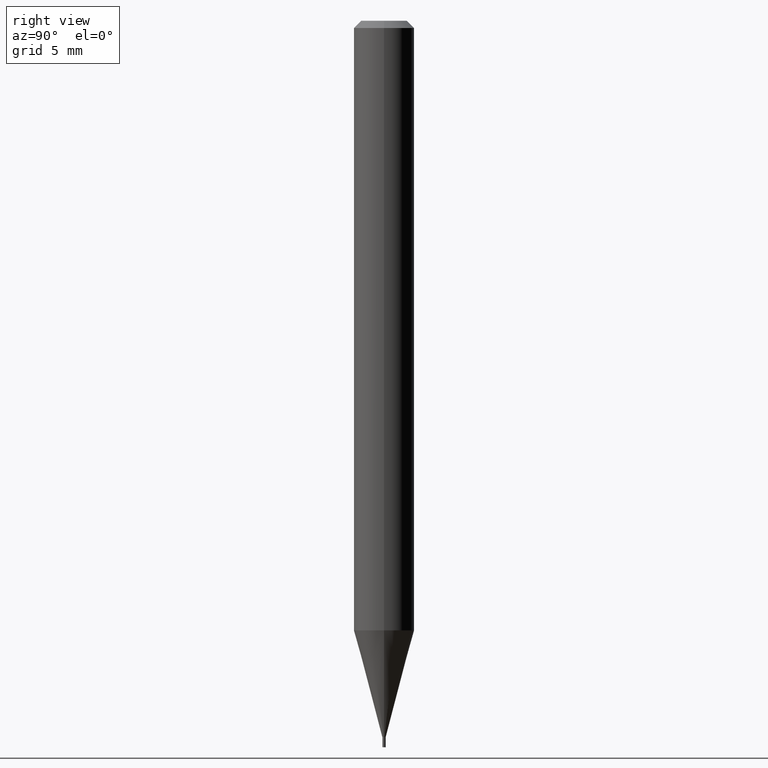
[diagram: clean part render]
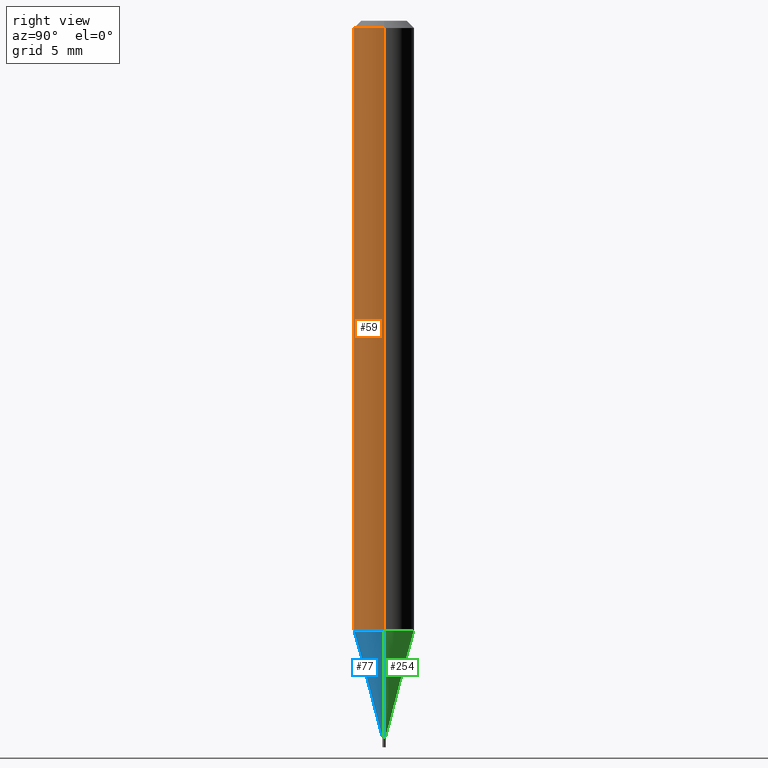
[diagram: same view with three faces highlighted in distinct colors, each labeled with its STEP entity id]
A machine part, right view with three faces highlighted in distinct colors.
Their STEP definitions:

[orange] entity #59 — the highlighted cylindrical surface (edge-blend (fillet) strip) has radius 1.5875 mm, axis along (-0, 0, 1).
#17 = VECTOR ( 'NONE', #47, 39.37007874015748143 ) ;
#22 = CARTESIAN_POINT ( 'NONE',  ( 3.078378148200359135E-29, -4.395108140884777792E-15, -1.258809002353435513 ) ) ;
#44 = DIRECTION ( 'NONE',  ( 1.000000000000000000, -6.982962677686262766E-15, 0.000000000000000000 ) ) ;
#47 = DIRECTION ( 'NONE',  ( -2.445468806185136877E-29, 3.491481338843145188E-15, 1.000000000000000000 ) ) ;
#49 = CARTESIAN_POINT ( 'NONE',  ( -0.06250000000000000000, -1.779650970633650017E-15, -0.01499999999999999944 ) ) ;
#51 = CARTESIAN_POINT ( 'NONE',  ( 0.06250000000000000000, -4.831543308240170251E-15, -1.258809002353435513 ) ) ;
#57 = DIRECTION ( 'NONE',  ( -2.445468806185136597E-29, 3.491481338843145583E-15, 1.000000000000000000 ) ) ;
#59 = ADVANCED_FACE ( 'NONE', ( #216 ), #310, .T. ) ;
#64 = DIRECTION ( 'NONE',  ( -2.445468806185136597E-29, 3.491481338843145583E-15, 1.000000000000000000 ) ) ;
#108 = CIRCLE ( 'NONE', #155, 0.06250000000000000000 ) ;
#132 = VERTEX_POINT ( 'NONE', #279 ) ;
#139 = CARTESIAN_POINT ( 'NONE',  ( -0.06250000000000000000, -3.951018931034715176E-15, -1.258809002353435513 ) ) ;
#154 = ORIENTED_EDGE ( 'NONE', *, *, #400, .T. ) ;
#155 = AXIS2_PLACEMENT_3D ( 'NONE', #22, #170, #44 ) ;
#156 = VERTEX_POINT ( 'NONE', #49 ) ;
#170 = DIRECTION ( 'NONE',  ( -2.445468806185136597E-29, 3.491481338843145583E-15, 1.000000000000000000 ) ) ;
#201 = DIRECTION ( 'NONE',  ( 1.000000000000000000, -6.982962677686266711E-15, 0.000000000000000000 ) ) ;
#216 = FACE_OUTER_BOUND ( 'NONE', #233, .T. ) ;
#219 = CARTESIAN_POINT ( 'NONE',  ( -0.06250000000000000000, 4.440892098500626162E-16, -3.074334431409316114E-30 ) ) ;
#231 = LINE ( 'NONE', #300, #17 ) ;
#233 = EDGE_LOOP ( 'NONE', ( #358, #154, #436, #375 ) ) ;
#238 = CARTESIAN_POINT ( 'NONE',  ( 3.668203209277705088E-31, -5.237222008264718399E-17, -0.01499999999999999944 ) ) ;
#240 = EDGE_CURVE ( 'NONE', #434, #156, #364, .T. ) ;
#279 = CARTESIAN_POINT ( 'NONE',  ( 0.06250000000000000000, -4.888073874380388472E-16, -0.01499999999999999944 ) ) ;
#288 = AXIS2_PLACEMENT_3D ( 'NONE', #315, #64, #383 ) ;
#300 = CARTESIAN_POINT ( 'NONE',  ( 0.06250000000000000000, -4.364351673553916694E-16, 3.047610484872459871E-30 ) ) ;
#310 = CYLINDRICAL_SURFACE ( 'NONE', #288, 0.06250000000000000000 ) ;
#315 = CARTESIAN_POINT ( 'NONE',  ( 0.000000000000000000, 0.000000000000000000, 0.000000000000000000 ) ) ;
#323 = DIRECTION ( 'NONE',  ( -2.445468806185136877E-29, 3.491481338843145188E-15, 1.000000000000000000 ) ) ;
#347 = CIRCLE ( 'NONE', #454, 0.06250000000000000000 ) ;
#358 = ORIENTED_EDGE ( 'NONE', *, *, #240, .F. ) ;
#364 = LINE ( 'NONE', #219, #437 ) ;
#375 = ORIENTED_EDGE ( 'NONE', *, *, #396, .F. ) ;
#383 = DIRECTION ( 'NONE',  ( 1.000000000000000000, -6.982962677686266711E-15, 4.876176775795935793E-29 ) ) ;
#396 = EDGE_CURVE ( 'NONE', #156, #132, #347, .T. ) ;
#400 = EDGE_CURVE ( 'NONE', #434, #408, #108, .T. ) ;
#408 = VERTEX_POINT ( 'NONE', #51 ) ;
#428 = EDGE_CURVE ( 'NONE', #408, #132, #231, .T. ) ;
#434 = VERTEX_POINT ( 'NONE', #139 ) ;
#436 = ORIENTED_EDGE ( 'NONE', *, *, #428, .T. ) ;
#437 = VECTOR ( 'NONE', #323, 39.37007874015748143 ) ;
#454 = AXIS2_PLACEMENT_3D ( 'NONE', #238, #57, #201 ) ;

[blue] entity #77 — the highlighted conical surface has half-angle 15 deg.
#10 = DIRECTION ( 'NONE',  ( -0.2588190451025215166, 5.211531920934551042E-15, 0.9659258262890679791 ) ) ;
#22 = CARTESIAN_POINT ( 'NONE',  ( 3.078378148200359135E-29, -4.395108140884777792E-15, -1.258809002353435513 ) ) ;
#25 = LINE ( 'NONE', #102, #261 ) ;
#44 = DIRECTION ( 'NONE',  ( 1.000000000000000000, -6.982962677686262766E-15, 0.000000000000000000 ) ) ;
#51 = CARTESIAN_POINT ( 'NONE',  ( 0.06250000000000000000, -4.831543308240170251E-15, -1.258809002353435513 ) ) ;
#77 = ADVANCED_FACE ( 'NONE', ( #276 ), #389, .T. ) ;
#79 = VERTEX_POINT ( 'NONE', #105 ) ;
#102 = CARTESIAN_POINT ( 'NONE',  ( 0.003499999999999649659, -5.188341269520912132E-15, -1.479000000000000092 ) ) ;
#105 = CARTESIAN_POINT ( 'NONE',  ( 0.003499999999999649659, -5.188341269520912132E-15, -1.479000000000000092 ) ) ;
#107 = EDGE_CURVE ( 'NONE', #79, #408, #25, .T. ) ;
#108 = CIRCLE ( 'NONE', #155, 0.06250000000000000000 ) ;
#127 = DIRECTION ( 'NONE',  ( 1.000000000000000000, -6.982962677686338497E-15, 0.000000000000000000 ) ) ;
#139 = CARTESIAN_POINT ( 'NONE',  ( -0.06250000000000000000, -3.951018931034715176E-15, -1.258809002353435513 ) ) ;
#155 = AXIS2_PLACEMENT_3D ( 'NONE', #22, #170, #44 ) ;
#170 = DIRECTION ( 'NONE',  ( -2.445468806185136597E-29, 3.491481338843145583E-15, 1.000000000000000000 ) ) ;
#171 = DIRECTION ( 'NONE',  ( 0.2588190451025215166, 1.565188264969620784E-15, 0.9659258262890679791 ) ) ;
#204 = LINE ( 'NONE', #296, #387 ) ;
#220 = CIRCLE ( 'NONE', #398, 0.003499999999999649659 ) ;
#221 = VERTEX_POINT ( 'NONE', #377 ) ;
#257 = ORIENTED_EDGE ( 'NONE', *, *, #400, .F. ) ;
#261 = VECTOR ( 'NONE', #171, 39.37007874015748143 ) ;
#263 = CARTESIAN_POINT ( 'NONE',  ( 3.616848364347817323E-29, -5.163900900149012660E-15, -1.479000000000000092 ) ) ;
#265 = EDGE_LOOP ( 'NONE', ( #292, #401, #445, #257 ) ) ;
#276 = FACE_OUTER_BOUND ( 'NONE', #265, .T. ) ;
#292 = ORIENTED_EDGE ( 'NONE', *, *, #307, .F. ) ;
#296 = CARTESIAN_POINT ( 'NONE',  ( -0.003499999999999649659, -5.139031904397411104E-15, -1.479000000000000092 ) ) ;
#303 = DIRECTION ( 'NONE',  ( -2.445468806185136597E-29, 3.491481338843145583E-15, 1.000000000000000000 ) ) ;
#307 = EDGE_CURVE ( 'NONE', #221, #434, #204, .T. ) ;
#318 = EDGE_CURVE ( 'NONE', #221, #79, #220, .T. ) ;
#319 = DIRECTION ( 'NONE',  ( 1.000000000000000000, -6.982962677686338497E-15, 0.000000000000000000 ) ) ;
#330 = AXIS2_PLACEMENT_3D ( 'NONE', #388, #385, #319 ) ;
#377 = CARTESIAN_POINT ( 'NONE',  ( -0.003499999999999649659, -4.545025417716062746E-15, -1.479000000000000092 ) ) ;
#385 = DIRECTION ( 'NONE',  ( -2.445468806185136597E-29, 3.491481338843145583E-15, 1.000000000000000000 ) ) ;
#387 = VECTOR ( 'NONE', #10, 39.37007874015748143 ) ;
#388 = CARTESIAN_POINT ( 'NONE',  ( 3.616848364347817323E-29, -5.163900900149012660E-15, -1.479000000000000092 ) ) ;
#389 = CONICAL_SURFACE ( 'NONE', #330, 0.003499999999999649659, 0.2617993877991502405 ) ;
#398 = AXIS2_PLACEMENT_3D ( 'NONE', #263, #303, #127 ) ;
#400 = EDGE_CURVE ( 'NONE', #434, #408, #108, .T. ) ;
#401 = ORIENTED_EDGE ( 'NONE', *, *, #318, .T. ) ;
#408 = VERTEX_POINT ( 'NONE', #51 ) ;
#434 = VERTEX_POINT ( 'NONE', #139 ) ;
#445 = ORIENTED_EDGE ( 'NONE', *, *, #107, .T. ) ;

[green] entity #254 — the highlighted conical surface has half-angle 15 deg.
#10 = DIRECTION ( 'NONE',  ( -0.2588190451025215166, 5.211531920934551042E-15, 0.9659258262890679791 ) ) ;
#25 = LINE ( 'NONE', #102, #261 ) ;
#51 = CARTESIAN_POINT ( 'NONE',  ( 0.06250000000000000000, -4.831543308240170251E-15, -1.258809002353435513 ) ) ;
#55 = CIRCLE ( 'NONE', #417, 0.06250000000000000000 ) ;
#79 = VERTEX_POINT ( 'NONE', #105 ) ;
#84 = DIRECTION ( 'NONE',  ( -2.445468806185136597E-29, 3.491481338843145583E-15, 1.000000000000000000 ) ) ;
#102 = CARTESIAN_POINT ( 'NONE',  ( 0.003499999999999649659, -5.188341269520912132E-15, -1.479000000000000092 ) ) ;
#105 = CARTESIAN_POINT ( 'NONE',  ( 0.003499999999999649659, -5.188341269520912132E-15, -1.479000000000000092 ) ) ;
#107 = EDGE_CURVE ( 'NONE', #79, #408, #25, .T. ) ;
#116 = DIRECTION ( 'NONE',  ( 1.000000000000000000, -6.982962677686338497E-15, 0.000000000000000000 ) ) ;
#124 = ORIENTED_EDGE ( 'NONE', *, *, #369, .T. ) ;
#136 = DIRECTION ( 'NONE',  ( 1.000000000000000000, -6.982962677686338497E-15, 0.000000000000000000 ) ) ;
#139 = CARTESIAN_POINT ( 'NONE',  ( -0.06250000000000000000, -3.951018931034715176E-15, -1.258809002353435513 ) ) ;
#167 = CONICAL_SURFACE ( 'NONE', #255, 0.003499999999999649659, 0.2617993877991502405 ) ;
#171 = DIRECTION ( 'NONE',  ( 0.2588190451025215166, 1.565188264969620784E-15, 0.9659258262890679791 ) ) ;
#182 = AXIS2_PLACEMENT_3D ( 'NONE', #449, #84, #136 ) ;
#185 = FACE_OUTER_BOUND ( 'NONE', #250, .T. ) ;
#188 = CIRCLE ( 'NONE', #182, 0.003499999999999649659 ) ;
#196 = ORIENTED_EDGE ( 'NONE', *, *, #267, .F. ) ;
#204 = LINE ( 'NONE', #296, #387 ) ;
#221 = VERTEX_POINT ( 'NONE', #377 ) ;
#228 = DIRECTION ( 'NONE',  ( -2.445468806185136597E-29, 3.491481338843145583E-15, 1.000000000000000000 ) ) ;
#250 = EDGE_LOOP ( 'NONE', ( #124, #406, #196, #334 ) ) ;
#254 = ADVANCED_FACE ( 'NONE', ( #185 ), #167, .T. ) ;
#255 = AXIS2_PLACEMENT_3D ( 'NONE', #326, #465, #116 ) ;
#261 = VECTOR ( 'NONE', #171, 39.37007874015748143 ) ;
#267 = EDGE_CURVE ( 'NONE', #408, #434, #55, .T. ) ;
#296 = CARTESIAN_POINT ( 'NONE',  ( -0.003499999999999649659, -5.139031904397411104E-15, -1.479000000000000092 ) ) ;
#307 = EDGE_CURVE ( 'NONE', #221, #434, #204, .T. ) ;
#326 = CARTESIAN_POINT ( 'NONE',  ( 3.616848364347817323E-29, -5.163900900149012660E-15, -1.479000000000000092 ) ) ;
#334 = ORIENTED_EDGE ( 'NONE', *, *, #107, .F. ) ;
#369 = EDGE_CURVE ( 'NONE', #79, #221, #188, .T. ) ;
#376 = CARTESIAN_POINT ( 'NONE',  ( 3.078378148200359135E-29, -4.395108140884777792E-15, -1.258809002353435513 ) ) ;
#377 = CARTESIAN_POINT ( 'NONE',  ( -0.003499999999999649659, -4.545025417716062746E-15, -1.479000000000000092 ) ) ;
#387 = VECTOR ( 'NONE', #10, 39.37007874015748143 ) ;
#406 = ORIENTED_EDGE ( 'NONE', *, *, #307, .T. ) ;
#408 = VERTEX_POINT ( 'NONE', #51 ) ;
#409 = DIRECTION ( 'NONE',  ( 1.000000000000000000, -6.982962677686262766E-15, 0.000000000000000000 ) ) ;
#417 = AXIS2_PLACEMENT_3D ( 'NONE', #376, #228, #409 ) ;
#434 = VERTEX_POINT ( 'NONE', #139 ) ;
#449 = CARTESIAN_POINT ( 'NONE',  ( 3.616848364347817323E-29, -5.163900900149012660E-15, -1.479000000000000092 ) ) ;
#465 = DIRECTION ( 'NONE',  ( -2.445468806185136597E-29, 3.491481338843145583E-15, 1.000000000000000000 ) ) ;